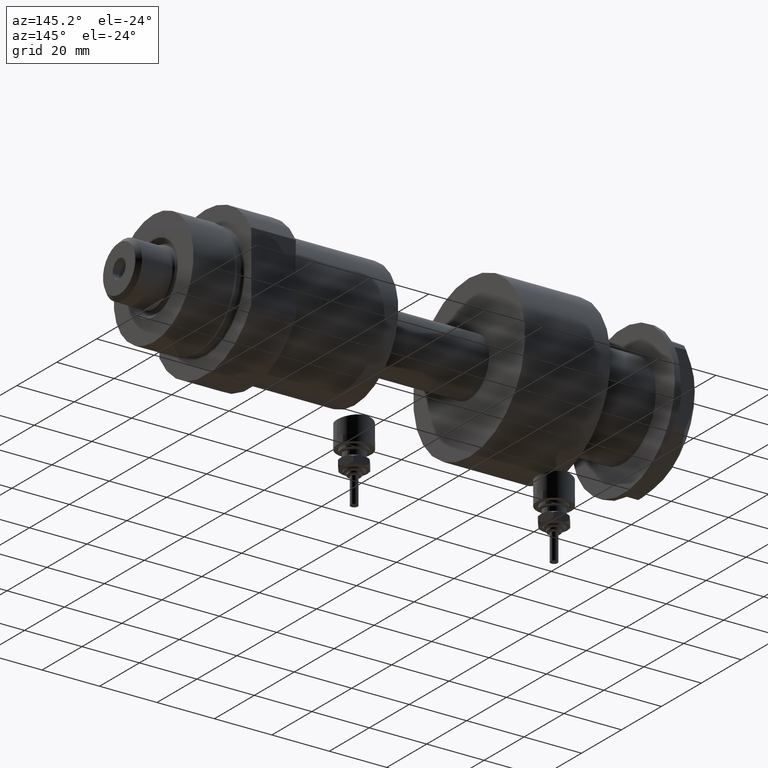
[diagram: clean part render]
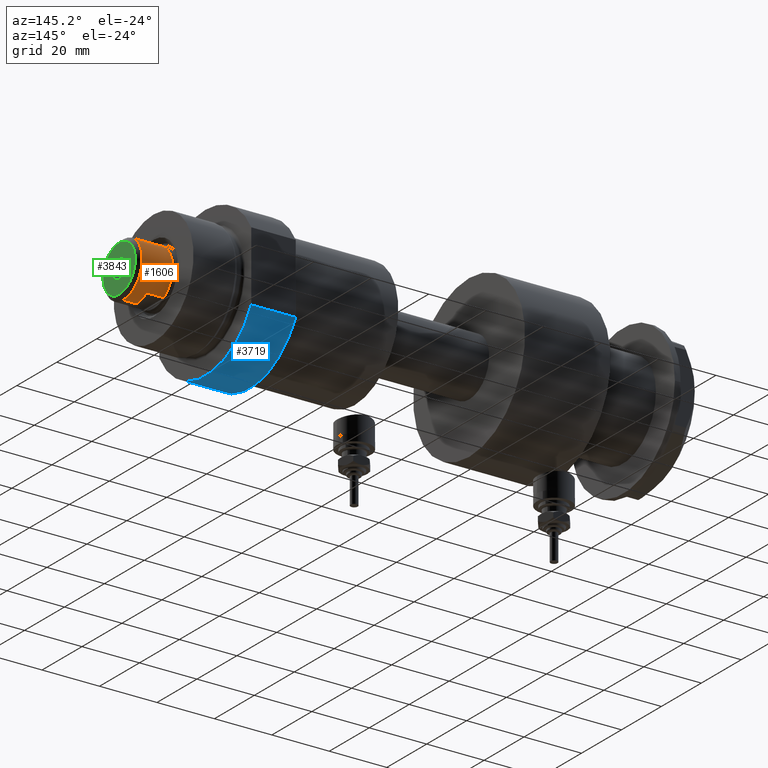
[diagram: same view with three faces highlighted in distinct colors, each labeled with its STEP entity id]
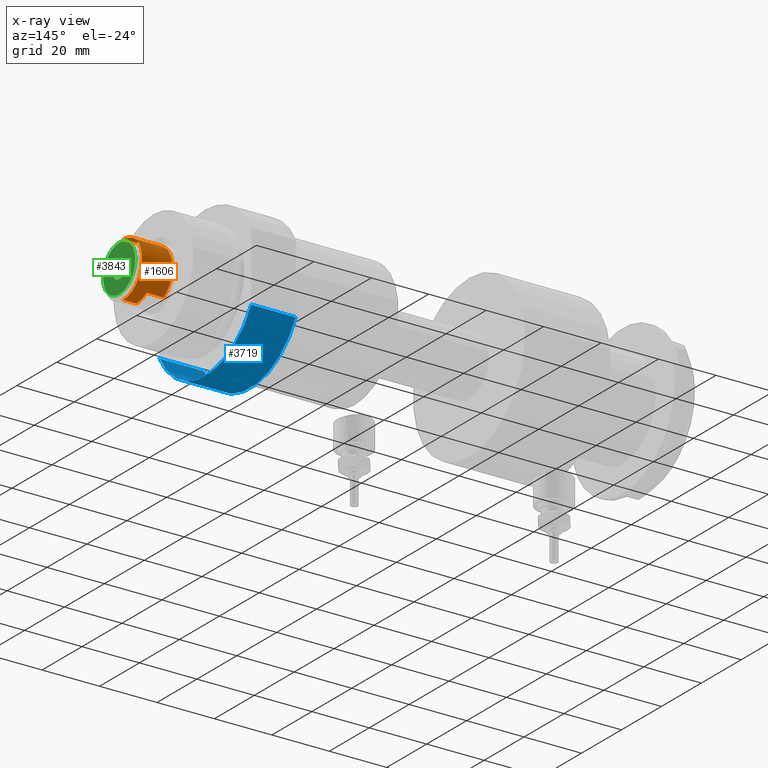
[diagram: x-ray of the same camera — body ghosted, the three highlighted faces saturated]
A machine part, auxiliary view with three faces highlighted in distinct colors.
The next image is the same camera in x-ray (body ghosted, the three faces saturated) — at least one of them is partly hidden behind the body in this view.
Their STEP definitions:

[orange] entity #1606 — the highlighted cylindrical surface (edge-blend (fillet) strip) has radius 9.5 mm, axis along (-1, -0, 0).
#110 = EDGE_CURVE ( 'NONE', #1255, #4531, #3569, .T. ) ;
#234 = EDGE_CURVE ( 'NONE', #1461, #4531, #4807, .T. ) ;
#417 = VECTOR ( 'NONE', #3038, 1000.000000000000000 ) ;
#484 = CARTESIAN_POINT ( 'NONE',  ( -9.500000000000001776, 0.000000000000000000, 145.5999999999999943 ) ) ;
#508 = CYLINDRICAL_SURFACE ( 'NONE', #4080, 9.500000000000001776 ) ;
#562 = AXIS2_PLACEMENT_3D ( 'NONE', #1671, #2421, #2044 ) ;
#678 = VECTOR ( 'NONE', #2010, 1000.000000000000000 ) ;
#688 = VERTEX_POINT ( 'NONE', #4010 ) ;
#746 = CARTESIAN_POINT ( 'NONE',  ( -9.500000000000000000, 0.000000000000000000, 145.5999999999999943 ) ) ;
#944 = DIRECTION ( 'NONE',  ( 1.000000000000000000, 0.000000000000000000, 0.000000000000000000 ) ) ;
#997 = DIRECTION ( 'NONE',  ( 0.000000000000000000, 0.000000000000000000, 1.000000000000000000 ) ) ;
#1006 = ORIENTED_EDGE ( 'NONE', *, *, #1998, .T. ) ;
#1014 = DIRECTION ( 'NONE',  ( -0.000000000000000000, -0.000000000000000000, -1.000000000000000000 ) ) ;
#1088 = EDGE_CURVE ( 'NONE', #1461, #3491, #1154, .T. ) ;
#1154 = CIRCLE ( 'NONE', #562, 9.500000000000001776 ) ;
#1252 = ORIENTED_EDGE ( 'NONE', *, *, #234, .F. ) ;
#1253 = DIRECTION ( 'NONE',  ( 0.000000000000000000, 0.000000000000000000, 1.000000000000000000 ) ) ;
#1255 = VERTEX_POINT ( 'NONE', #1421 ) ;
#1265 = EDGE_CURVE ( 'NONE', #3488, #2897, #2844, .T. ) ;
#1421 = CARTESIAN_POINT ( 'NONE',  ( -7.982950582334830791, 5.149999999999999467, 145.5999999999999943 ) ) ;
#1461 = VERTEX_POINT ( 'NONE', #1592 ) ;
#1592 = CARTESIAN_POINT ( 'NONE',  ( -9.500000000000001776, 0.000000000000000000, 150.1999999999999602 ) ) ;
#1606 = ADVANCED_FACE ( 'NONE', ( #2526 ), #508, .T. ) ;
#1607 = CARTESIAN_POINT ( 'NONE',  ( 0.000000000000000000, 0.000000000000000000, 145.5999999999999943 ) ) ;
#1663 = DIRECTION ( 'NONE',  ( 0.000000000000000000, 0.000000000000000000, 1.000000000000000000 ) ) ;
#1669 = ORIENTED_EDGE ( 'NONE', *, *, #1088, .T. ) ;
#1671 = CARTESIAN_POINT ( 'NONE',  ( 0.000000000000000000, 0.000000000000000000, 150.1999999999999602 ) ) ;
#1752 = AXIS2_PLACEMENT_3D ( 'NONE', #1607, #1253, #3978 ) ;
#1909 = ORIENTED_EDGE ( 'NONE', *, *, #1265, .T. ) ;
#1998 = EDGE_CURVE ( 'NONE', #4717, #3488, #4691, .T. ) ;
#2010 = DIRECTION ( 'NONE',  ( -0.000000000000000000, -0.000000000000000000, -1.000000000000000000 ) ) ;
#2044 = DIRECTION ( 'NONE',  ( 1.000000000000000000, 0.000000000000000000, 0.000000000000000000 ) ) ;
#2098 = VECTOR ( 'NONE', #4729, 1000.000000000000000 ) ;
#2132 = CARTESIAN_POINT ( 'NONE',  ( 7.982950582334830791, 5.149999999999999467, 139.5999999999999943 ) ) ;
#2137 = DIRECTION ( 'NONE',  ( 1.000000000000000000, 0.000000000000000000, 0.000000000000000000 ) ) ;
#2175 = ORIENTED_EDGE ( 'NONE', *, *, #3185, .F. ) ;
#2339 = AXIS2_PLACEMENT_3D ( 'NONE', #2498, #1663, #2137 ) ;
#2368 = LINE ( 'NONE', #3597, #678 ) ;
#2421 = DIRECTION ( 'NONE',  ( 0.000000000000000000, 0.000000000000000000, -1.000000000000000000 ) ) ;
#2498 = CARTESIAN_POINT ( 'NONE',  ( 0.000000000000000000, 0.000000000000000000, 145.5999999999999943 ) ) ;
#2526 = FACE_OUTER_BOUND ( 'NONE', #3927, .T. ) ;
#2543 = CARTESIAN_POINT ( 'NONE',  ( 9.500000000000001776, 1.163414459189985682E-15, 150.1999999999999602 ) ) ;
#2596 = AXIS2_PLACEMENT_3D ( 'NONE', #4022, #997, #944 ) ;
#2623 = LINE ( 'NONE', #3430, #417 ) ;
#2700 = CARTESIAN_POINT ( 'NONE',  ( 7.982950582334830791, 5.149999999999999467, 145.5999999999999943 ) ) ;
#2844 = CIRCLE ( 'NONE', #2596, 9.500000000000090594 ) ;
#2897 = VERTEX_POINT ( 'NONE', #4774 ) ;
#2935 = EDGE_CURVE ( 'NONE', #3491, #688, #2368, .T. ) ;
#3038 = DIRECTION ( 'NONE',  ( -0.000000000000000000, -0.000000000000000000, -1.000000000000000000 ) ) ;
#3160 = ORIENTED_EDGE ( 'NONE', *, *, #4595, .T. ) ;
#3185 = EDGE_CURVE ( 'NONE', #1255, #2897, #2623, .T. ) ;
#3355 = CARTESIAN_POINT ( 'NONE',  ( 7.982950582334830791, 5.149999999999999467, 145.5999999999999943 ) ) ;
#3430 = CARTESIAN_POINT ( 'NONE',  ( -7.982950582334830791, 5.149999999999999467, 145.5999999999999943 ) ) ;
#3488 = VERTEX_POINT ( 'NONE', #2132 ) ;
#3491 = VERTEX_POINT ( 'NONE', #2543 ) ;
#3569 = CIRCLE ( 'NONE', #2339, 9.500000000000000000 ) ;
#3597 = CARTESIAN_POINT ( 'NONE',  ( 9.500000000000001776, 1.163414459189985682E-15, 145.5999999999999943 ) ) ;
#3703 = CARTESIAN_POINT ( 'NONE',  ( 0.000000000000000000, 0.000000000000000000, 145.5999999999999943 ) ) ;
#3927 = EDGE_LOOP ( 'NONE', ( #1669, #4172, #3160, #1006, #1909, #2175, #4020, #1252 ) ) ;
#3978 = DIRECTION ( 'NONE',  ( 1.000000000000000000, 0.000000000000000000, 0.000000000000000000 ) ) ;
#4010 = CARTESIAN_POINT ( 'NONE',  ( 9.500000000000000000, 1.163414459189985485E-15, 145.5999999999999943 ) ) ;
#4020 = ORIENTED_EDGE ( 'NONE', *, *, #110, .T. ) ;
#4022 = CARTESIAN_POINT ( 'NONE',  ( 0.000000000000000000, 0.000000000000000000, 139.5999999999999943 ) ) ;
#4080 = AXIS2_PLACEMENT_3D ( 'NONE', #3703, #1014, #4429 ) ;
#4172 = ORIENTED_EDGE ( 'NONE', *, *, #2935, .T. ) ;
#4248 = VECTOR ( 'NONE', #4272, 1000.000000000000000 ) ;
#4272 = DIRECTION ( 'NONE',  ( -0.000000000000000000, -0.000000000000000000, -1.000000000000000000 ) ) ;
#4429 = DIRECTION ( 'NONE',  ( -1.000000000000000000, 0.000000000000000000, 0.000000000000000000 ) ) ;
#4529 = CIRCLE ( 'NONE', #1752, 9.500000000000000000 ) ;
#4531 = VERTEX_POINT ( 'NONE', #746 ) ;
#4595 = EDGE_CURVE ( 'NONE', #688, #4717, #4529, .T. ) ;
#4691 = LINE ( 'NONE', #2700, #4248 ) ;
#4717 = VERTEX_POINT ( 'NONE', #3355 ) ;
#4729 = DIRECTION ( 'NONE',  ( -0.000000000000000000, -0.000000000000000000, -1.000000000000000000 ) ) ;
#4774 = CARTESIAN_POINT ( 'NONE',  ( -7.982950582334829015, 5.150000000000165556, 139.5999999999999943 ) ) ;
#4807 = LINE ( 'NONE', #484, #2098 ) ;

[blue] entity #3719 — the highlighted cylindrical surface (partial cylindrical patch) has radius 26 mm, axis along (-1, -0, 0).
#243 = EDGE_CURVE ( 'NONE', #723, #2404, #886, .T. ) ;
#350 = DIRECTION ( 'NONE',  ( 1.000000000000000000, 0.000000000000000000, 0.000000000000000000 ) ) ;
#723 = VERTEX_POINT ( 'NONE', #2494 ) ;
#748 = CIRCLE ( 'NONE', #4901, 26.00000000000000355 ) ;
#768 = CYLINDRICAL_SURFACE ( 'NONE', #1024, 26.00000000000000355 ) ;
#812 = CARTESIAN_POINT ( 'NONE',  ( 12.12435565298214790, 23.00000000000000355, 15.50000000000000000 ) ) ;
#831 = EDGE_CURVE ( 'NONE', #5011, #4763, #1765, .T. ) ;
#873 = FACE_OUTER_BOUND ( 'NONE', #2072, .T. ) ;
#886 = LINE ( 'NONE', #3528, #1704 ) ;
#996 = ORIENTED_EDGE ( 'NONE', *, *, #243, .T. ) ;
#1024 = AXIS2_PLACEMENT_3D ( 'NONE', #4637, #5023, #2793 ) ;
#1067 = VECTOR ( 'NONE', #1341, 1000.000000000000000 ) ;
#1341 = DIRECTION ( 'NONE',  ( -0.000000000000000000, -0.000000000000000000, 1.000000000000000000 ) ) ;
#1578 = EDGE_CURVE ( 'NONE', #5011, #723, #4167, .T. ) ;
#1580 = ORIENTED_EDGE ( 'NONE', *, *, #2655, .F. ) ;
#1704 = VECTOR ( 'NONE', #3941, 1000.000000000000000 ) ;
#1765 = LINE ( 'NONE', #4825, #1067 ) ;
#2072 = EDGE_LOOP ( 'NONE', ( #1580, #3263, #4615, #996 ) ) ;
#2164 = DIRECTION ( 'NONE',  ( 1.000000000000000000, 0.000000000000000000, 0.000000000000000000 ) ) ;
#2249 = DIRECTION ( 'NONE',  ( 0.000000000000000000, 0.000000000000000000, 1.000000000000000000 ) ) ;
#2404 = VERTEX_POINT ( 'NONE', #812 ) ;
#2494 = CARTESIAN_POINT ( 'NONE',  ( 12.12435565298214080, 23.00000000000000355, 0.000000000000000000 ) ) ;
#2655 = EDGE_CURVE ( 'NONE', #4763, #2404, #748, .T. ) ;
#2679 = CARTESIAN_POINT ( 'NONE',  ( 12.12435565298215323, -22.99999999999999645, 15.50000000000000000 ) ) ;
#2793 = DIRECTION ( 'NONE',  ( -1.000000000000000000, 0.000000000000000000, 0.000000000000000000 ) ) ;
#3263 = ORIENTED_EDGE ( 'NONE', *, *, #831, .F. ) ;
#3528 = CARTESIAN_POINT ( 'NONE',  ( 12.12435565298215323, 23.00000000000000355, 0.000000000000000000 ) ) ;
#3581 = AXIS2_PLACEMENT_3D ( 'NONE', #4857, #4502, #2164 ) ;
#3719 = ADVANCED_FACE ( 'NONE', ( #873 ), #768, .T. ) ;
#3941 = DIRECTION ( 'NONE',  ( -0.000000000000000000, -0.000000000000000000, 1.000000000000000000 ) ) ;
#4167 = CIRCLE ( 'NONE', #3581, 26.00000000000000355 ) ;
#4179 = CARTESIAN_POINT ( 'NONE',  ( 0.000000000000000000, 0.000000000000000000, 15.50000000000000000 ) ) ;
#4453 = CARTESIAN_POINT ( 'NONE',  ( 12.12435565298215323, -22.99999999999999645, 0.000000000000000000 ) ) ;
#4502 = DIRECTION ( 'NONE',  ( 0.000000000000000000, 0.000000000000000000, 1.000000000000000000 ) ) ;
#4615 = ORIENTED_EDGE ( 'NONE', *, *, #1578, .T. ) ;
#4637 = CARTESIAN_POINT ( 'NONE',  ( 0.000000000000000000, 0.000000000000000000, 15.50000000000000000 ) ) ;
#4763 = VERTEX_POINT ( 'NONE', #2679 ) ;
#4825 = CARTESIAN_POINT ( 'NONE',  ( 12.12435565298215323, -22.99999999999999645, 0.000000000000000000 ) ) ;
#4857 = CARTESIAN_POINT ( 'NONE',  ( 0.000000000000000000, 0.000000000000000000, 0.000000000000000000 ) ) ;
#4901 = AXIS2_PLACEMENT_3D ( 'NONE', #4179, #2249, #350 ) ;
#5011 = VERTEX_POINT ( 'NONE', #4453 ) ;
#5023 = DIRECTION ( 'NONE',  ( -0.000000000000000000, -0.000000000000000000, -1.000000000000000000 ) ) ;

[green] entity #3843 — the highlighted planar face has unit normal (1, 0, -0).
#423 = AXIS2_PLACEMENT_3D ( 'NONE', #3135, #4687, #1208 ) ;
#545 = DIRECTION ( 'NONE',  ( 1.000000000000000000, 0.000000000000000000, 0.000000000000000000 ) ) ;
#598 = CARTESIAN_POINT ( 'NONE',  ( -3.249999999999998224, 3.980102097228895766E-16, 151.6000000000000227 ) ) ;
#638 = ORIENTED_EDGE ( 'NONE', *, *, #2495, .F. ) ;
#645 = CARTESIAN_POINT ( 'NONE',  ( -8.099999999999981881, 0.000000000000000000, 151.6000000000000227 ) ) ;
#1016 = EDGE_LOOP ( 'NONE', ( #4144, #638 ) ) ;
#1208 = DIRECTION ( 'NONE',  ( 1.000000000000000000, 0.000000000000000000, 0.000000000000000000 ) ) ;
#1231 = EDGE_CURVE ( 'NONE', #2624, #2094, #3826, .T. ) ;
#1558 = VERTEX_POINT ( 'NONE', #3214 ) ;
#1751 = CARTESIAN_POINT ( 'NONE',  ( 3.249999999999998224, 0.000000000000000000, 151.6000000000000227 ) ) ;
#2094 = VERTEX_POINT ( 'NONE', #598 ) ;
#2126 = DIRECTION ( 'NONE',  ( 1.000000000000000000, 0.000000000000000000, -0.000000000000000000 ) ) ;
#2195 = CARTESIAN_POINT ( 'NONE',  ( 0.000000000000000000, 0.000000000000000000, 151.6000000000000227 ) ) ;
#2306 = AXIS2_PLACEMENT_3D ( 'NONE', #4004, #3637, #2126 ) ;
#2495 = EDGE_CURVE ( 'NONE', #2094, #2624, #2855, .T. ) ;
#2598 = VERTEX_POINT ( 'NONE', #645 ) ;
#2619 = EDGE_CURVE ( 'NONE', #2598, #1558, #4890, .T. ) ;
#2624 = VERTEX_POINT ( 'NONE', #1751 ) ;
#2681 = AXIS2_PLACEMENT_3D ( 'NONE', #2195, #3762, #2941 ) ;
#2855 = CIRCLE ( 'NONE', #4653, 3.249999999999998224 ) ;
#2863 = CARTESIAN_POINT ( 'NONE',  ( 0.000000000000000000, 0.000000000000000000, 151.6000000000000227 ) ) ;
#2941 = DIRECTION ( 'NONE',  ( 1.000000000000000000, 0.000000000000000000, 0.000000000000000000 ) ) ;
#3135 = CARTESIAN_POINT ( 'NONE',  ( 0.000000000000000000, 0.000000000000000000, 151.6000000000000227 ) ) ;
#3159 = FACE_OUTER_BOUND ( 'NONE', #4210, .T. ) ;
#3174 = AXIS2_PLACEMENT_3D ( 'NONE', #2863, #4486, #3679 ) ;
#3214 = CARTESIAN_POINT ( 'NONE',  ( 8.099999999999981881, 1.077689183249669619E-15, 151.6000000000000227 ) ) ;
#3341 = ORIENTED_EDGE ( 'NONE', *, *, #3814, .T. ) ;
#3637 = DIRECTION ( 'NONE',  ( 0.000000000000000000, 0.000000000000000000, 1.000000000000000000 ) ) ;
#3679 = DIRECTION ( 'NONE',  ( 1.000000000000000000, 0.000000000000000000, 0.000000000000000000 ) ) ;
#3762 = DIRECTION ( 'NONE',  ( 0.000000000000000000, 0.000000000000000000, 1.000000000000000000 ) ) ;
#3814 = EDGE_CURVE ( 'NONE', #1558, #2598, #4437, .T. ) ;
#3826 = CIRCLE ( 'NONE', #3174, 3.249999999999998224 ) ;
#3843 = ADVANCED_FACE ( 'NONE', ( #3159, #4709 ), #4492, .T. ) ;
#4004 = CARTESIAN_POINT ( 'NONE',  ( 0.000000000000000000, 0.000000000000000000, 151.6000000000000227 ) ) ;
#4052 = DIRECTION ( 'NONE',  ( -0.000000000000000000, -0.000000000000000000, 1.000000000000000000 ) ) ;
#4137 = ORIENTED_EDGE ( 'NONE', *, *, #2619, .T. ) ;
#4144 = ORIENTED_EDGE ( 'NONE', *, *, #1231, .F. ) ;
#4210 = EDGE_LOOP ( 'NONE', ( #4137, #3341 ) ) ;
#4437 = CIRCLE ( 'NONE', #423, 8.099999999999981881 ) ;
#4486 = DIRECTION ( 'NONE',  ( -0.000000000000000000, -0.000000000000000000, 1.000000000000000000 ) ) ;
#4492 = PLANE ( 'NONE',  #2306 ) ;
#4653 = AXIS2_PLACEMENT_3D ( 'NONE', #4836, #4052, #545 ) ;
#4687 = DIRECTION ( 'NONE',  ( 0.000000000000000000, 0.000000000000000000, 1.000000000000000000 ) ) ;
#4709 = FACE_BOUND ( 'NONE', #1016, .T. ) ;
#4836 = CARTESIAN_POINT ( 'NONE',  ( 0.000000000000000000, 0.000000000000000000, 151.6000000000000227 ) ) ;
#4890 = CIRCLE ( 'NONE', #2681, 8.099999999999981881 ) ;